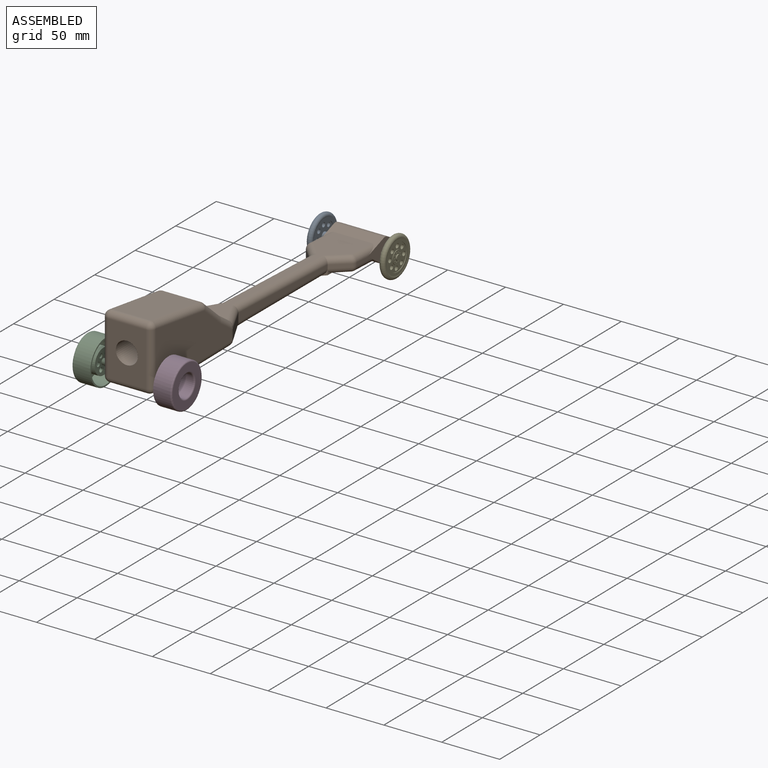
[diagram: assembled view]
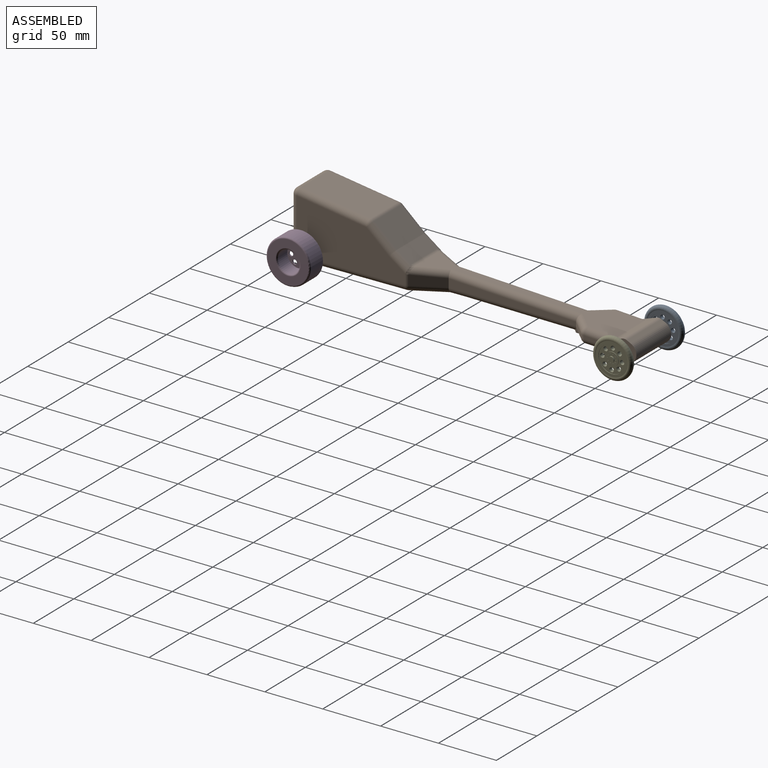
[diagram: assembled view, second angle]
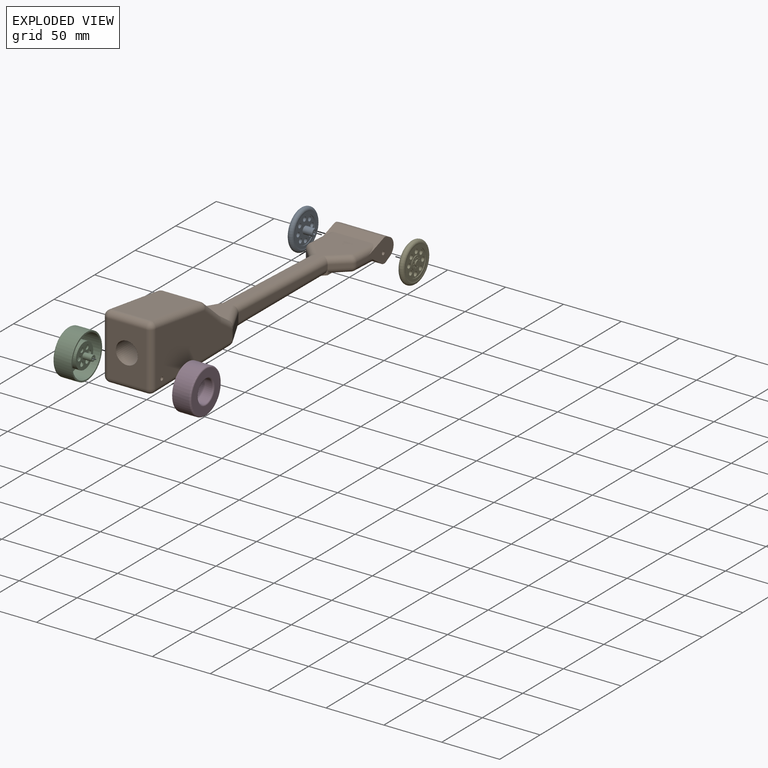
[diagram: exploded view]
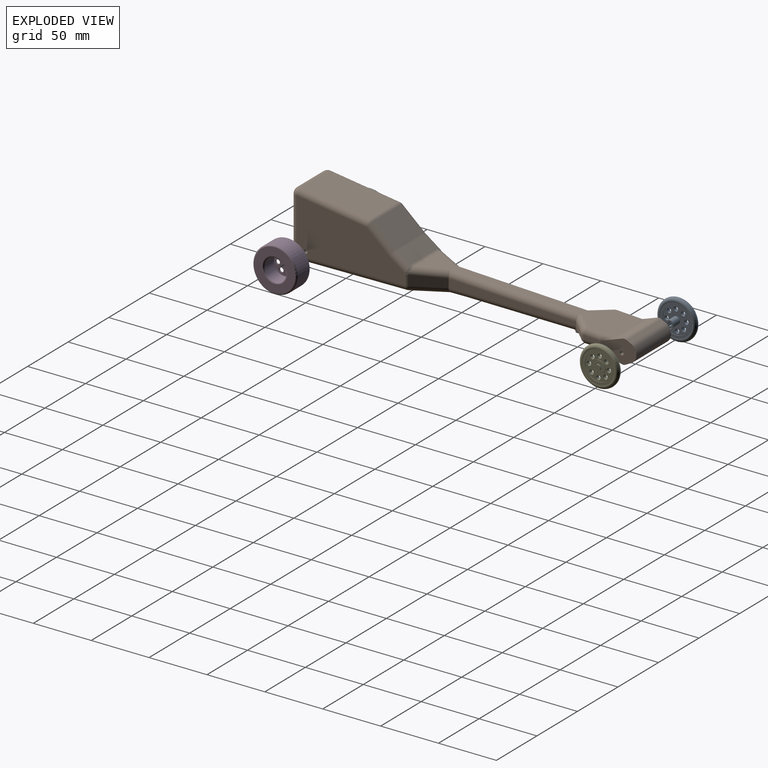
[diagram: exploded view, second angle]
ASSEMBLY  parts=5 mates=8
PART A: 43 faces, bbox 43.9x22.9x43.9 mm
  f0: revolved ~34.31x34.31mm, area 855.2mm2, adj f16,f18
  f1: plane 23.03x23.03mm, normal (0,-1,0), area 296.9mm2, adj f6,f7,f8,f9,f10,f11,f12,f13
  f2: plane 11.33x11.33mm, normal (0,1,0), area 76.5mm2, adj f3,f5,f19,f21,f23,f25,f27,f29
  f3: cylinder r=2.4mm len=4.8mm, axis (0,-1,0), area 16.7mm2, adj f2,f4
  f4: plane 4.8x4.8mm, normal (0,1,0), area 18.1mm2, adj f3
  f5: cylinder r=5.66mm len=11.33mm, axis (0,-1,0), area 18.1mm2, adj f2,f14
  f6: cylinder r=1.88mm len=3.76mm, axis (0,-1,0), area 40.9mm2, adj f1,f14
  f7: cylinder r=1.88mm len=3.76mm, axis (0,-1,0), area 40.9mm2, adj f1,f14
  f8: cylinder r=1.88mm len=3.76mm, axis (0,-1,0), area 40.9mm2, adj f1,f14
  f9: cylinder r=1.88mm len=3.76mm, axis (0,-1,0), area 40.9mm2, adj f1,f14
  f10: cylinder r=1.88mm len=3.76mm, axis (0,-1,0), area 40.9mm2, adj f1,f14
  f11: cylinder r=1.88mm len=3.76mm, axis (0,-1,0), area 40.9mm2, adj f1,f14
  f12: cylinder r=1.88mm len=3.76mm, axis (0,-1,0), area 40.9mm2, adj f1,f14
  f13: cylinder r=1.88mm len=3.76mm, axis (0,-1,0), area 40.9mm2, adj f1,f14
  f14: plane 23.03x23.03mm, normal (0,1,0), area 226.8mm2, adj f5,f6,f7,f8,f9,f10,f11,f12
  f15: cylinder r=11.51mm len=23.03mm, axis (0,1,0), area 36.7mm2, adj f1,f16
  f16: plane 37.43x37.43mm, normal (0,-1,0), area 193.5mm2, adj f0,f15
  f17: cylinder r=11.51mm len=23.03mm, axis (0,1,0), area 36.7mm2, adj f14,f18
  f18: plane 37.43x37.43mm, normal (0,1,0), area 193.5mm2, adj f0,f17
  f19: cylinder r=0.44mm len=0.89mm, axis (0,-1,0), area 1.1mm2, adj f2,f20
  f20: plane 0.89x0.89mm, normal (0,1,0), area 0.6mm2, adj f19
  f21: cylinder r=0.44mm len=0.89mm, axis (0,-1,0), area 1.1mm2, adj f2,f22
  f22: plane 0.89x0.89mm, normal (0,1,0), area 0.6mm2, adj f21
  f23: cylinder r=0.44mm len=0.89mm, axis (0,-1,0), area 1.1mm2, adj f2,f24
  f24: plane 0.89x0.89mm, normal (0,1,0), area 0.6mm2, adj f23
  f25: cylinder r=0.44mm len=0.89mm, axis (0,-1,0), area 1.1mm2, adj f2,f26
  f26: plane 0.89x0.89mm, normal (0,1,0), area 0.6mm2, adj f25
  f27: cylinder r=0.44mm len=0.89mm, axis (0,-1,0), area 1.1mm2, adj f2,f28
  f28: plane 0.89x0.89mm, normal (0,1,0), area 0.6mm2, adj f27
  f29: cylinder r=0.44mm len=0.89mm, axis (0,-1,0), area 1.1mm2, adj f2,f30
  f30: plane 0.89x0.89mm, normal (0,1,0), area 0.6mm2, adj f29
  f31: cylinder r=0.44mm len=0.89mm, axis (0,-1,0), area 1.1mm2, adj f2,f32
  f32: plane 0.89x0.89mm, normal (0,1,0), area 0.6mm2, adj f31
  f33: cylinder r=0.44mm len=0.89mm, axis (0,-1,0), area 1.1mm2, adj f2,f34
  f34: plane 0.89x0.89mm, normal (0,1,0), area 0.6mm2, adj f33
  f35: cylinder r=0.44mm len=0.89mm, axis (0,-1,0), area 1.1mm2, adj f2,f36
  f36: plane 0.89x0.89mm, normal (0,1,0), area 0.6mm2, adj f35
  f37: cylinder r=0.44mm len=0.89mm, axis (0,-1,0), area 1.1mm2, adj f2,f38
  f38: plane 0.89x0.89mm, normal (0,1,0), area 0.6mm2, adj f37
  f39: cylinder r=3.12mm len=8.26mm, axis (0,1,0), area 162mm2, adj f1,f40
  f40: plane 6.25x6.25mm, normal (0,-1,0), area 21.7mm2, adj f39,f41
  f41: cylinder r=1.69mm len=10.13mm, axis (0,-1,0), area 107.6mm2, adj f40,f42
  f42: plane 3.38x3.38mm, normal (0,-1,0), area 9mm2, adj f41
PART B: 83 faces, bbox 48x303.6x66.8 mm
  f0: plane 7.54x7.32mm, normal (0.72,-0.69,0), area 8mm2, adj f7,f31,f38
  f1: plane 45.38x20.53mm, normal (1,0,0), area 433.2mm2, adj f16,f17,f18,f19,f20,f21,f22,f23
  f2: plane 45.38x20.53mm, normal (-1,0,0), area 541.3mm2, adj f6,f16,f17,f18,f19,f20,f21,f22
  f3: plane 32.7x11.64mm, normal (0,0.58,0.82), area 465.8mm2, adj f63,f64,f71,f72
  f4: plane 139.68x28.9mm, normal (0,0.04,1), area 1009.5mm2, adj f5,f40,f41,f42,f43,f61,f70,f71
  f5: plane 36.57x32.7mm, normal (0,0.05,1), area 1080.8mm2, adj f4,f16,f42,f43,f44,f82
  f6: plane 37.79x35.11mm, normal (0,-0.04,-1), area 1249.7mm2, adj f2,f7,f22,f29,f31,f46,f77,f78
  f7: plane 102.17x21.42mm, normal (0,-0.01,-1), area 637.9mm2, adj f0,f6,f8,f29,f31,f35,f38
  f8: plane 135.75x32.7mm, normal (0,0.01,-1), area 3648.2mm2, adj f7,f26,f34,f36,f37,f39,f53,f73
  f9: plane 46.25x32.7mm, normal (0,-1,0), area 1227.5mm2, adj f12,f26,f49,f56,f66
  f10: plane 93.71x46.25mm, normal (1,0,0), area 3245.9mm2, adj f24,f25,f49,f53,f54,f58,f62,f63
  f11: plane 93.71x46.25mm, normal (-1,0,0), area 3245.9mm2, adj f24,f48,f65,f66,f68,f72,f73,f76
  f12: cylinder r=9.53mm len=50.8mm, axis (0,-1,0), area 3040.2mm2, adj f9,f13
  f13: plane 19.05x19.05mm, normal (0,-1,0), area 285mm2, adj f12
  f14: plane 59.96x32.7mm, normal (0,0.14,0.99), area 1980.7mm2, adj f25,f48,f55,f56
  f15: plane 32.7x19.47mm, normal (0,0.66,0.75), area 849mm2, adj f54,f55,f64,f65
  f16: plane 47.97x24.79mm, normal (0,-0.34,0.94), area 360.4mm2, adj f1,f2,f5,f44,f47,f82
  f17: plane 42.86x3.58mm, normal (0,0.44,0.9), area 171.1mm2, adj f1,f2,f18,f47
  f18: cylinder r=8.51mm len=42.86mm, axis (1,0,0), area 402.2mm2, adj f1,f2,f17,f19
  f19: plane 42.86x0.16mm, normal (0,1,0), area 6.8mm2, adj f1,f2,f18,f20
  f20: cylinder r=8.51mm len=42.86mm, axis (1,0,0), area 395.4mm2, adj f1,f2,f19,f21
  f21: plane 42.86x4.78mm, normal (0,0.46,-0.89), area 230.8mm2, adj f1,f2,f20,f33
  f22: plane 46.13x16.5mm, normal (0,-0.58,-0.82), area 307.8mm2, adj f1,f2,f6,f33,f77
  f23: cylinder r=1.59mm len=42.86mm, axis (1,0,0), area 427.5mm2, adj f1,f2
  f24: cylinder r=1.59mm len=42.86mm, axis (1,0,0), area 427.5mm2, adj f10,f11
  f25: cylinder r=5.08mm len=60.68mm, axis (0,-0.99,0.14), area 483.3mm2, adj f10,f14,f51,f52
  f26: cylinder r=5.08mm len=32.7mm, axis (1,0,0), area 262.9mm2, adj f8,f9,f50,f69
  f27: plane 110.06x7.76mm, normal (-1,0,0), area 576mm2, adj f28,f29,f35,f36,f41,f43
  f28: plane 25.53x13.21mm, normal (-0.89,0.46,0), area 235.1mm2, adj f27,f34,f36,f41,f70,f76
  f29: plane 20.43x19.68mm, normal (-0.72,-0.69,0), area 150.9mm2, adj f6,f7,f27,f35,f43,f46
  f30: plane 12.89x12.36mm, normal (0.72,-0.69,0), area 53.6mm2, adj f31,f42,f78,f80
  f31: plane 119.32x15.04mm, normal (1,0,0), area 584.2mm2, adj f0,f6,f7,f30,f32,f38,f39,f40
  f32: plane 25.53x13.21mm, normal (0.89,0.46,0), area 235.1mm2, adj f31,f37,f39,f40,f61,f62
  f33: cylinder r=5.08mm len=42.86mm, axis (1,0,0), area 238.5mm2, adj f1,f2,f21,f22
  f34: cylinder r=5.08mm len=28.9mm, axis (0.46,0.89,0.01), area 233.4mm2, adj f8,f28,f36,f75
  f35: cylinder r=5.08mm len=95.86mm, axis (0,1,-0.01), area 743.5mm2, adj f7,f27,f29,f36
  f36: cylinder r=5.08mm len=15.52mm, axis (0,1,0.01), area 116.9mm2, adj f8,f27,f28,f34,f35
  f37: cylinder r=5.08mm len=28.9mm, axis (0.46,-0.89,-0.01), area 233.4mm2, adj f8,f32,f39,f57
  f38: cylinder r=5.08mm len=95.86mm, axis (0,-1,0.01), area 743.5mm2, adj f0,f7,f31,f39
  f39: cylinder r=5.08mm len=15.52mm, axis (0,-1,-0.01), area 116.9mm2, adj f8,f31,f32,f37,f38
  f40: cylinder r=5.08mm len=112.87mm, axis (0,1,-0.04), area 887.5mm2, adj f4,f31,f32,f42,f61
  f41: cylinder r=5.08mm len=112.87mm, axis (0,-1,0.04), area 887.5mm2, adj f4,f27,f28,f43,f70
  f42: cylinder r=5.08mm len=18.73mm, axis (0.69,0.72,-0.04), area 150.7mm2, adj f4,f5,f30,f31,f40,f81
  f43: cylinder r=5.08mm len=18.73mm, axis (0.69,-0.72,0.04), area 150.7mm2, adj f4,f5,f27,f29,f41,f45
  f44: cylinder r=5.08mm len=25.81mm, axis (0,1,-0.05), area 155.7mm2, adj f2,f5,f16,f45
  f45: sphere r=5.08mm, area 25.4mm2, adj f43,f44,f46
  f46: cylinder r=5.08mm len=7.99mm, axis (0,0,1), area 30.8mm2, adj f2,f6,f29,f45
  f47: cylinder r=5.08mm len=42.86mm, axis (1,0,0), area 174.6mm2, adj f1,f2,f16,f17
  f48: cylinder r=5.08mm len=60.68mm, axis (0,0.99,-0.14), area 483.3mm2, adj f11,f14,f59,f60
  f49: cylinder r=5.08mm len=46.25mm, axis (0,0,1), area 369.1mm2, adj f9,f10,f50,f52
  f50: sphere r=5.08mm, area 40.8mm2, adj f26,f49,f53
  f51: sphere r=5.08mm, area 22.1mm2, adj f25,f54,f55
  f52: sphere r=5.08mm, area 58.1mm2, adj f25,f49,f56
  f53: cylinder r=5.08mm len=93.77mm, axis (0,1,0.01), area 747.8mm2, adj f8,f10,f50,f57
  f54: cylinder r=5.08mm len=22.83mm, axis (0,-0.75,0.66), area 207.2mm2, adj f10,f15,f51,f58
  f55: cylinder r=5.08mm len=32.7mm, axis (1,0,0), area 96.6mm2, adj f14,f15,f51,f59
  f56: cylinder r=5.08mm len=32.7mm, axis (-1,0,0), area 284.4mm2, adj f9,f14,f52,f60
  f57: sphere r=5.08mm, area 10.9mm2, adj f37,f53,f62
  f58: torus R=10.16mm, axis (1,0,0), area 6mm2, adj f10,f54,f63,f64
  f59: sphere r=5.08mm, area 22.1mm2, adj f48,f55,f65
  f60: sphere r=5.08mm, area 43.4mm2, adj f48,f56,f66
  f61: cylinder r=5.08mm len=28.76mm, axis (-0.46,0.89,-0.04), area 215.3mm2, adj f4,f32,f40,f67
  f62: cylinder r=5.08mm len=9.3mm, axis (0,0,1), area 22mm2, adj f10,f32,f57,f67
  f63: cylinder r=5.08mm len=16.34mm, axis (0,-0.82,0.58), area 122.3mm2, adj f3,f10,f58,f67
  f64: cylinder r=5.08mm len=32.7mm, axis (-1,0,0), area 18mm2, adj f3,f15,f58,f68
  f65: cylinder r=5.08mm len=22.83mm, axis (0,0.75,-0.66), area 207.2mm2, adj f11,f15,f59,f68
  f66: cylinder r=5.08mm len=46.25mm, axis (0,0,-1), area 369.1mm2, adj f9,f11,f60,f69
  f67: bspline ~6.98x5.9mm, area 20.1mm2, adj f61,f62,f63,f71
  f68: torus R=10.16mm, axis (1,0,0), area 6mm2, adj f11,f64,f65,f72
  f69: sphere r=5.08mm, area 40.7mm2, adj f26,f66,f73
  f70: cylinder r=5.08mm len=28.76mm, axis (-0.46,-0.89,0.04), area 215.3mm2, adj f4,f28,f41,f74
  f71: cylinder r=5.08mm len=32.7mm, axis (-1,0,0), area 89.8mm2, adj f3,f4,f67,f74
  f72: cylinder r=5.08mm len=16.34mm, axis (0,0.82,-0.58), area 122.3mm2, adj f3,f11,f68,f74
  f73: cylinder r=5.08mm len=93.77mm, axis (0,-1,-0.01), area 747.8mm2, adj f8,f11,f69,f75
  f74: bspline ~6.98x5.9mm, area 20.1mm2, adj f70,f71,f72,f76
  f75: sphere r=5.08mm, area 10.9mm2, adj f34,f73,f76
  f76: cylinder r=5.08mm len=9.3mm, axis (0,0,1), area 22mm2, adj f11,f28,f74,f75
  f77: cylinder r=5.08mm len=25.45mm, axis (0,1,-0.04), area 170.7mm2, adj f1,f6,f22,f79
  f78: cylinder r=5.08mm len=16.21mm, axis (0.69,0.72,-0.03), area 119.3mm2, adj f6,f30,f31,f79
  f79: sphere r=5.08mm, area 20.4mm2, adj f77,f78,f80
  f80: cylinder r=5.08mm len=3.52mm, axis (0,0,1), area 11.3mm2, adj f1,f30,f79,f81
  f81: sphere r=5.08mm, area 25.9mm2, adj f42,f80,f82
  f82: cylinder r=5.08mm len=25.81mm, axis (0,-1,0.05), area 155.7mm2, adj f1,f5,f16,f81
PART C: 20 faces, bbox 41.2x41.2x21.6 mm
  f0: cylinder r=19.05mm len=38.1mm, axis (0,0,1), area 1748.1mm2, adj f2,f19
  f1: plane 35.56x35.56mm, normal (0,0,-1), area 627.1mm2, adj f18,f19
  f2: plane 38.1x38.1mm, normal (0,0,1), area 146.9mm2, adj f0,f5
  f3: cylinder r=9.53mm len=19.05mm, axis (0,0,-1), area 684.1mm2, adj f4,f18
  f4: plane 19.05x19.05mm, normal (0,0,-1), area 211.6mm2, adj f3,f9,f10,f11,f12,f13,f14,f17
  f5: cylinder r=17.78mm len=35.56mm, axis (0,0,1), area 1631.6mm2, adj f2,f6
  f6: plane 35.56x35.56mm, normal (0,0,1), area 627.1mm2, adj f5,f7
  f7: cylinder r=10.79mm len=21.59mm, axis (0,0,-1), area 861.4mm2, adj f6,f8
  f8: plane 21.59x21.59mm, normal (0,0,1), area 277.4mm2, adj f7,f9,f10,f11,f12,f13,f14,f15
  f9: cylinder r=1.91mm len=3.81mm, axis (0,0,-1), area 15.2mm2, adj f4,f8
  f10: cylinder r=1.91mm len=3.81mm, axis (0,0,-1), area 15.2mm2, adj f4,f8
  f11: cylinder r=1.91mm len=3.81mm, axis (0,0,-1), area 15.2mm2, adj f4,f8
  f12: cylinder r=1.91mm len=3.81mm, axis (0,0,-1), area 15.2mm2, adj f4,f8
  f13: cylinder r=1.91mm len=3.81mm, axis (0,0,-1), area 15.2mm2, adj f4,f8
  f14: cylinder r=1.91mm len=3.81mm, axis (0,0,-1), area 15.2mm2, adj f4,f8
  f15: cylinder r=2.54mm len=7.62mm, axis (0,0,-1), area 121.6mm2, adj f8,f16
  f16: plane 5.08x5.08mm, normal (0,0,1), area 15.2mm2, adj f15,f17
  f17: cylinder r=1.27mm len=8.89mm, axis (0,0,1), area 70.9mm2, adj f4,f16
  f18: torus R=10.79mm, axis (0,0,-1), area 125.2mm2, adj f1,f3
  f19: torus R=17.78mm, axis (0,0,-1), area 233mm2, adj f0,f1
PART D: same geometry as C
PART E: same geometry as A
PLACE A rot(axis=(0.58,-0.58,0.58),120deg) t=(-74.81,176.11,66.8)mm
PLACE B t=(-45.12,28.22,10.36)mm
PLACE C rot(axis=(0.71,0,0.71),180deg) t=(-80.21,-111.48,26.14)mm
PLACE D rot(axis=(0.71,0,-0.71),180deg) t=(-10.04,-111.48,26.14)mm
PLACE E rot(axis=(0.58,0.58,-0.58),120deg) t=(-15.44,176.11,-27.02)mm
MATE planar A.f3 <-> B.f23  axis (1,0,0) through (-66.55,161.6,19.89)mm
MATE cylindrical C.f0 <-> B.f24  axis (1,0,0) through (-66.55,-111.48,26.14)mm
MATE planar C.f0 <-> B.f24  axis (1,0,0) through (-66.55,-111.48,26.14)mm
MATE planar D.f0 <-> B.f24  axis (-1,0,0) through (-23.69,-111.48,26.14)mm
MATE cylindrical A.f3 <-> B.f23  axis (1,0,0) through (-66.55,161.6,19.89)mm
MATE cylindrical E.f3 <-> B.f23  axis (-1,0,0) through (-23.69,161.6,19.89)mm
MATE cylindrical D.f0 <-> B.f24  axis (-1,0,0) through (-23.69,-111.48,26.14)mm
MATE planar E.f3 <-> B.f23  axis (-1,0,0) through (-23.69,161.6,19.89)mm
